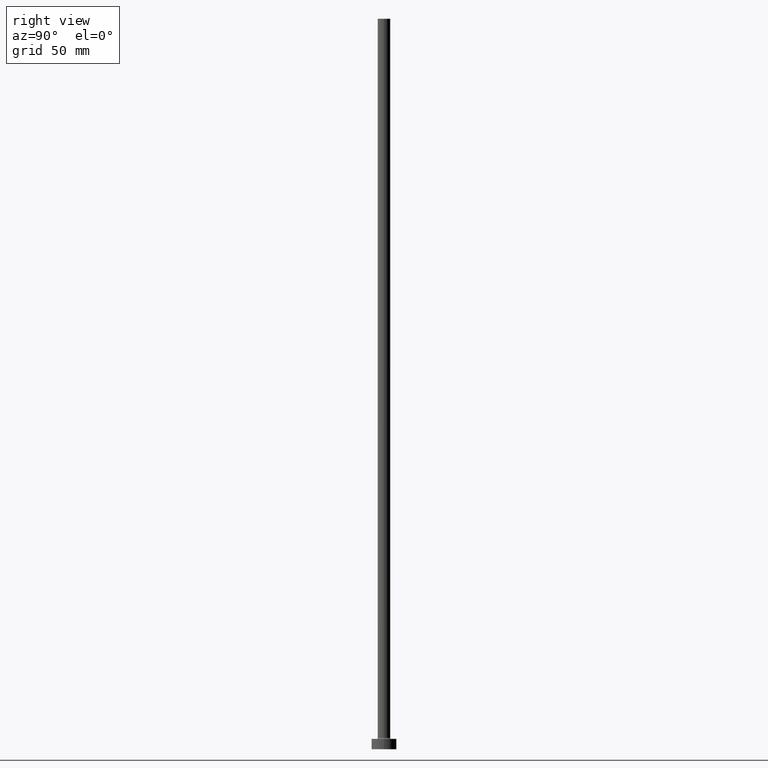
[diagram: clean part render]
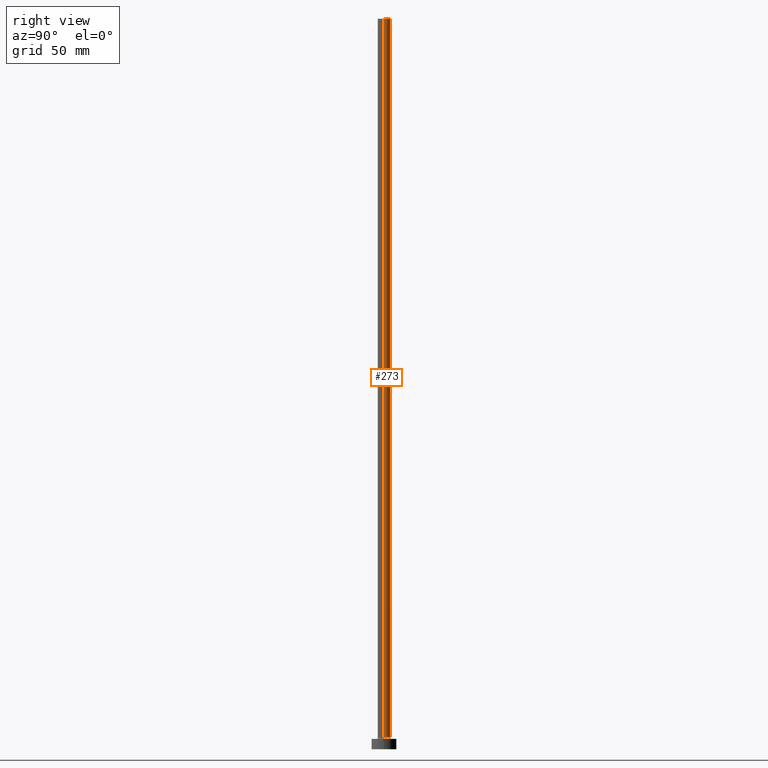
[diagram: same view with one face highlighted and labeled with its STEP entity id]
A machine part, right view. The second image highlights one B-rep face of the part: STEP entity #273.
In plain terms, the highlighted cylindrical surface (edge-blend (fillet) strip) has radius 3 mm, axis along (-0, -0, -1).
Its self-contained STEP definition (entity closure, byte-faithful):
#38 = VERTEX_POINT ( 'NONE', #222 ) ;
#56 = ORIENTED_EDGE ( 'NONE', *, *, #246, .F. ) ;
#60 = LINE ( 'NONE', #433, #64 ) ;
#64 = VECTOR ( 'NONE', #403, 1000.000000000000000 ) ;
#67 = DIRECTION ( 'NONE',  ( -0.000000000000000000, -0.000000000000000000, -1.000000000000000000 ) ) ;
#114 = ORIENTED_EDGE ( 'NONE', *, *, #129, .T. ) ;
#117 = DIRECTION ( 'NONE',  ( 1.000000000000000000, 0.000000000000000000, 0.000000000000000000 ) ) ;
#129 = EDGE_CURVE ( 'NONE', #261, #38, #381, .T. ) ;
#168 = LINE ( 'NONE', #314, #226 ) ;
#192 = EDGE_LOOP ( 'NONE', ( #56, #291, #114, #367 ) ) ;
#195 = DIRECTION ( 'NONE',  ( 1.000000000000000000, 0.000000000000000000, 0.000000000000000000 ) ) ;
#197 = CYLINDRICAL_SURFACE ( 'NONE', #213, 3.000000000000000444 ) ;
#205 = DIRECTION ( 'NONE',  ( -0.000000000000000000, -0.000000000000000000, -1.000000000000000000 ) ) ;
#213 = AXIS2_PLACEMENT_3D ( 'NONE', #232, #205, #449 ) ;
#222 = CARTESIAN_POINT ( 'NONE',  ( -3.000000000000000444, 0.000000000000000000, 5.500000000000005329 ) ) ;
#226 = VECTOR ( 'NONE', #67, 1000.000000000000000 ) ;
#232 = CARTESIAN_POINT ( 'NONE',  ( 0.000000000000000000, 0.000000000000000000, 350.0000000000000000 ) ) ;
#237 = CARTESIAN_POINT ( 'NONE',  ( 0.000000000000000000, 0.000000000000000000, 350.0000000000000000 ) ) ;
#240 = CARTESIAN_POINT ( 'NONE',  ( 3.000000000000000444, 3.673940397442060361E-16, 350.0000000000000000 ) ) ;
#246 = EDGE_CURVE ( 'NONE', #445, #325, #251, .T. ) ;
#251 = CIRCLE ( 'NONE', #286, 3.000000000000000444 ) ;
#261 = VERTEX_POINT ( 'NONE', #384 ) ;
#273 = ADVANCED_FACE ( 'NONE', ( #316 ), #197, .T. ) ;
#275 = CARTESIAN_POINT ( 'NONE',  ( -3.000000000000000444, 0.000000000000000000, 350.0000000000000000 ) ) ;
#285 = CARTESIAN_POINT ( 'NONE',  ( 0.000000000000000000, 0.000000000000000000, 5.500000000000005329 ) ) ;
#286 = AXIS2_PLACEMENT_3D ( 'NONE', #237, #452, #195 ) ;
#291 = ORIENTED_EDGE ( 'NONE', *, *, #341, .T. ) ;
#312 = AXIS2_PLACEMENT_3D ( 'NONE', #285, #321, #117 ) ;
#314 = CARTESIAN_POINT ( 'NONE',  ( -3.000000000000000444, 0.000000000000000000, 350.0000000000000000 ) ) ;
#316 = FACE_OUTER_BOUND ( 'NONE', #192, .T. ) ;
#321 = DIRECTION ( 'NONE',  ( 0.000000000000000000, 0.000000000000000000, 1.000000000000000000 ) ) ;
#325 = VERTEX_POINT ( 'NONE', #275 ) ;
#326 = EDGE_CURVE ( 'NONE', #325, #38, #168, .T. ) ;
#341 = EDGE_CURVE ( 'NONE', #445, #261, #60, .T. ) ;
#367 = ORIENTED_EDGE ( 'NONE', *, *, #326, .F. ) ;
#381 = CIRCLE ( 'NONE', #312, 3.000000000000000444 ) ;
#384 = CARTESIAN_POINT ( 'NONE',  ( 3.000000000000000444, 3.673940397442060361E-16, 5.500000000000005329 ) ) ;
#403 = DIRECTION ( 'NONE',  ( -0.000000000000000000, -0.000000000000000000, -1.000000000000000000 ) ) ;
#433 = CARTESIAN_POINT ( 'NONE',  ( 3.000000000000000444, 3.673940397442060361E-16, 350.0000000000000000 ) ) ;
#445 = VERTEX_POINT ( 'NONE', #240 ) ;
#449 = DIRECTION ( 'NONE',  ( -1.000000000000000000, 0.000000000000000000, 0.000000000000000000 ) ) ;
#452 = DIRECTION ( 'NONE',  ( 0.000000000000000000, 0.000000000000000000, 1.000000000000000000 ) ) ;